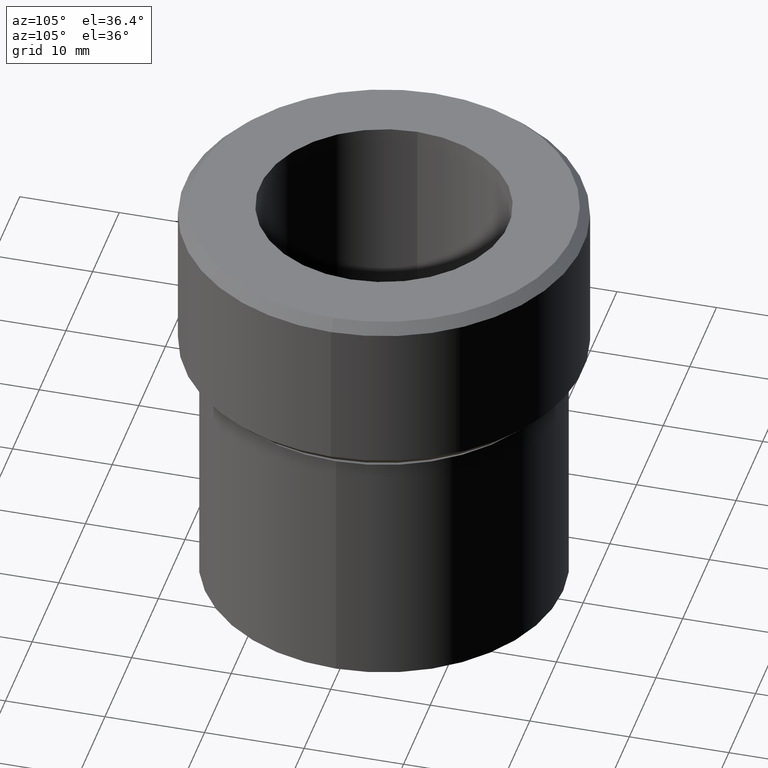
[diagram: clean part render]
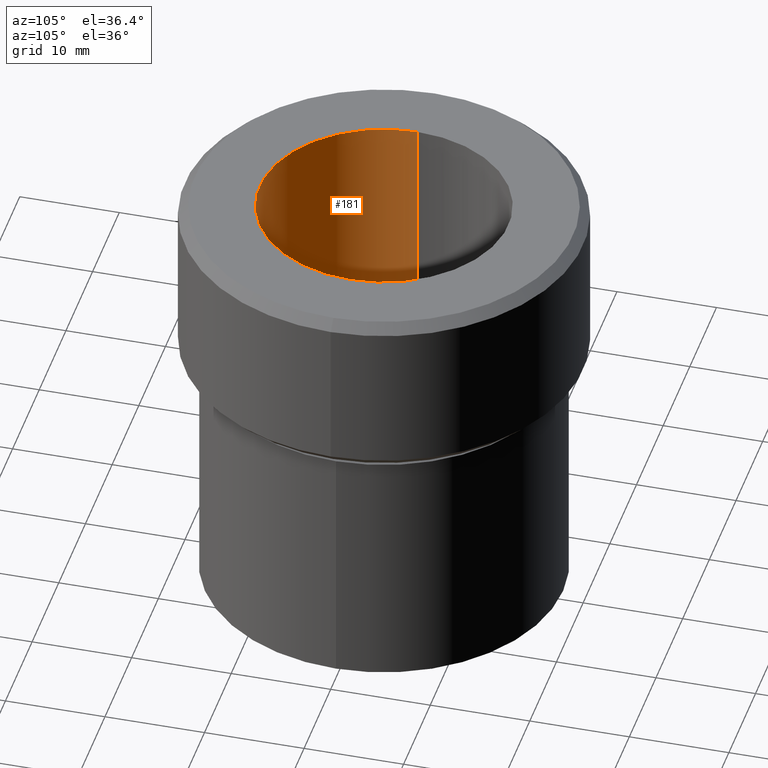
[diagram: same view with one face highlighted and labeled with its STEP entity id]
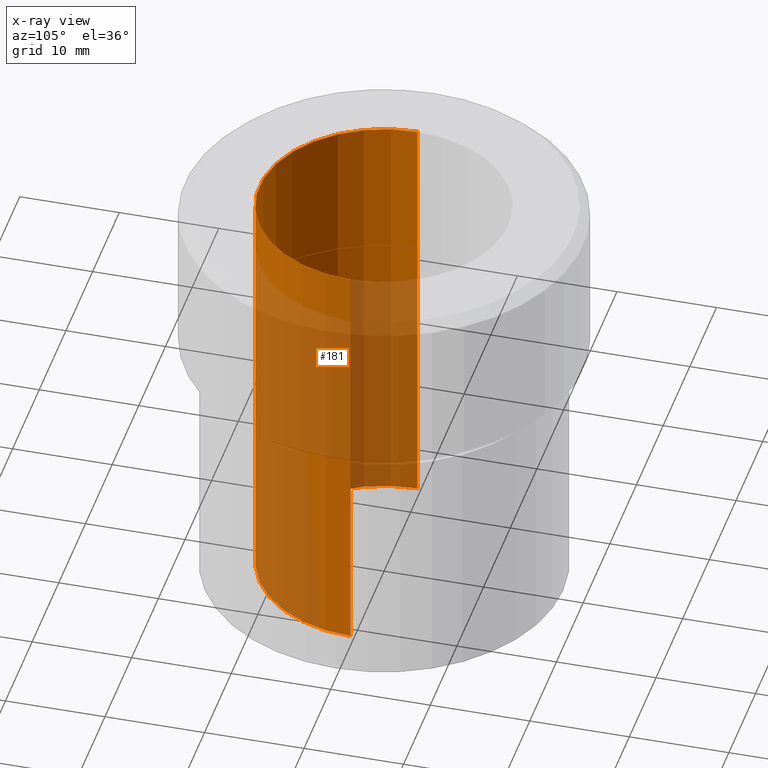
[diagram: x-ray of the same camera — body ghosted, the highlighted face saturated]
A machine part, auxiliary view. The second image highlights one B-rep face of the part: STEP entity #181.
The next image is the same camera in x-ray: the body ghosted, the highlighted face saturated — about 55% of this face is hidden behind the body in this view.
In plain terms, the highlighted cylindrical surface (partial cylindrical patch) has radius 12.5 mm, axis along (-0, -0, 1).
Its self-contained STEP definition (entity closure, byte-faithful):
#6 = CARTESIAN_POINT ( 'NONE',  ( 12.50000000000000000, 0.000000000000000000, 0.000000000000000000 ) ) ;
#9 = DIRECTION ( 'NONE',  ( -1.000000000000000000, 0.000000000000000000, 0.000000000000000000 ) ) ;
#15 = EDGE_CURVE ( 'NONE', #331, #32, #428, .T. ) ;
#32 = VERTEX_POINT ( 'NONE', #44 ) ;
#44 = CARTESIAN_POINT ( 'NONE',  ( -12.50000000000000000, 1.530808498934191521E-15, -43.00000000000000000 ) ) ;
#54 = ORIENTED_EDGE ( 'NONE', *, *, #15, .T. ) ;
#57 = CARTESIAN_POINT ( 'NONE',  ( -12.50000000000000000, 1.530808498934191521E-15, -54.99999999999999289 ) ) ;
#88 = AXIS2_PLACEMENT_3D ( 'NONE', #170, #214, #484 ) ;
#93 = DIRECTION ( 'NONE',  ( 0.000000000000000000, 0.000000000000000000, -1.000000000000000000 ) ) ;
#97 = EDGE_LOOP ( 'NONE', ( #54, #152, #217, #116 ) ) ;
#100 = VERTEX_POINT ( 'NONE', #6 ) ;
#109 = VERTEX_POINT ( 'NONE', #234 ) ;
#116 = ORIENTED_EDGE ( 'NONE', *, *, #306, .F. ) ;
#122 = CARTESIAN_POINT ( 'NONE',  ( 0.000000000000000000, 0.000000000000000000, -54.99999999999999289 ) ) ;
#142 = CARTESIAN_POINT ( 'NONE',  ( 12.50000000000000000, 0.000000000000000000, -54.99999999999999289 ) ) ;
#152 = ORIENTED_EDGE ( 'NONE', *, *, #319, .T. ) ;
#165 = DIRECTION ( 'NONE',  ( -0.000000000000000000, -0.000000000000000000, 1.000000000000000000 ) ) ;
#170 = CARTESIAN_POINT ( 'NONE',  ( 0.000000000000000000, 0.000000000000000000, 0.000000000000000000 ) ) ;
#181 = ADVANCED_FACE ( 'NONE', ( #253 ), #526, .F. ) ;
#189 = LINE ( 'NONE', #57, #397 ) ;
#191 = EDGE_CURVE ( 'NONE', #109, #100, #359, .T. ) ;
#208 = AXIS2_PLACEMENT_3D ( 'NONE', #480, #93, #9 ) ;
#214 = DIRECTION ( 'NONE',  ( -0.000000000000000000, -0.000000000000000000, 1.000000000000000000 ) ) ;
#217 = ORIENTED_EDGE ( 'NONE', *, *, #191, .T. ) ;
#233 = LINE ( 'NONE', #142, #348 ) ;
#234 = CARTESIAN_POINT ( 'NONE',  ( -12.50000000000000000, 1.530808498934191521E-15, 0.000000000000000000 ) ) ;
#253 = FACE_OUTER_BOUND ( 'NONE', #97, .T. ) ;
#276 = AXIS2_PLACEMENT_3D ( 'NONE', #122, #165, #335 ) ;
#306 = EDGE_CURVE ( 'NONE', #331, #100, #233, .T. ) ;
#317 = DIRECTION ( 'NONE',  ( -0.000000000000000000, -0.000000000000000000, 1.000000000000000000 ) ) ;
#319 = EDGE_CURVE ( 'NONE', #32, #109, #189, .T. ) ;
#331 = VERTEX_POINT ( 'NONE', #352 ) ;
#335 = DIRECTION ( 'NONE',  ( 1.000000000000000000, 0.000000000000000000, 0.000000000000000000 ) ) ;
#348 = VECTOR ( 'NONE', #317, 1000.000000000000000 ) ;
#352 = CARTESIAN_POINT ( 'NONE',  ( 12.50000000000000000, 0.000000000000000000, -43.00000000000000000 ) ) ;
#359 = CIRCLE ( 'NONE', #88, 12.50000000000000000 ) ;
#363 = DIRECTION ( 'NONE',  ( -0.000000000000000000, -0.000000000000000000, 1.000000000000000000 ) ) ;
#397 = VECTOR ( 'NONE', #363, 1000.000000000000000 ) ;
#428 = CIRCLE ( 'NONE', #208, 12.50000000000000000 ) ;
#480 = CARTESIAN_POINT ( 'NONE',  ( 0.000000000000000000, 0.000000000000000000, -43.00000000000000000 ) ) ;
#484 = DIRECTION ( 'NONE',  ( 1.000000000000000000, 0.000000000000000000, 0.000000000000000000 ) ) ;
#526 = CYLINDRICAL_SURFACE ( 'NONE', #276, 12.50000000000000000 ) ;